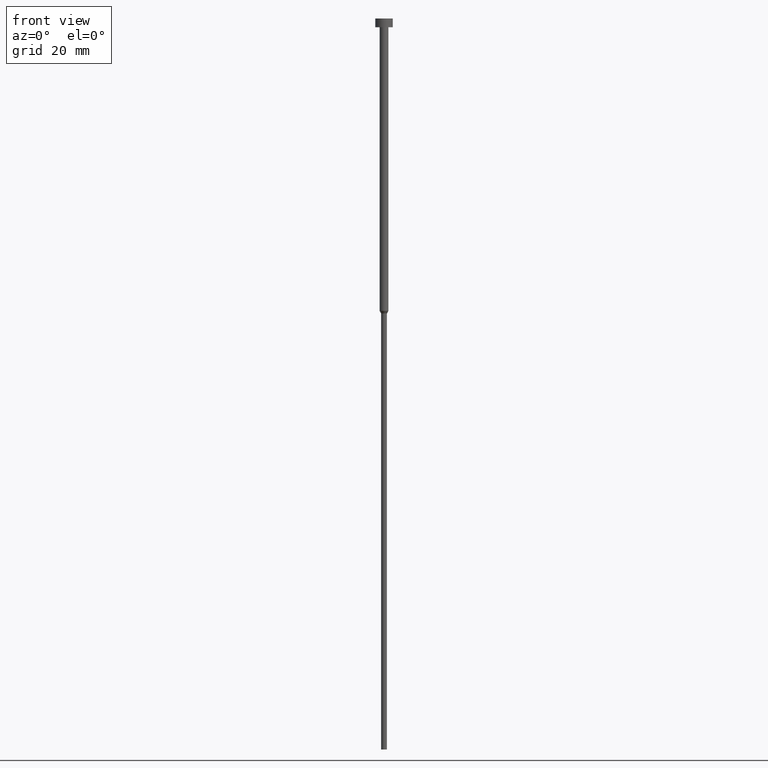
[diagram: clean part render]
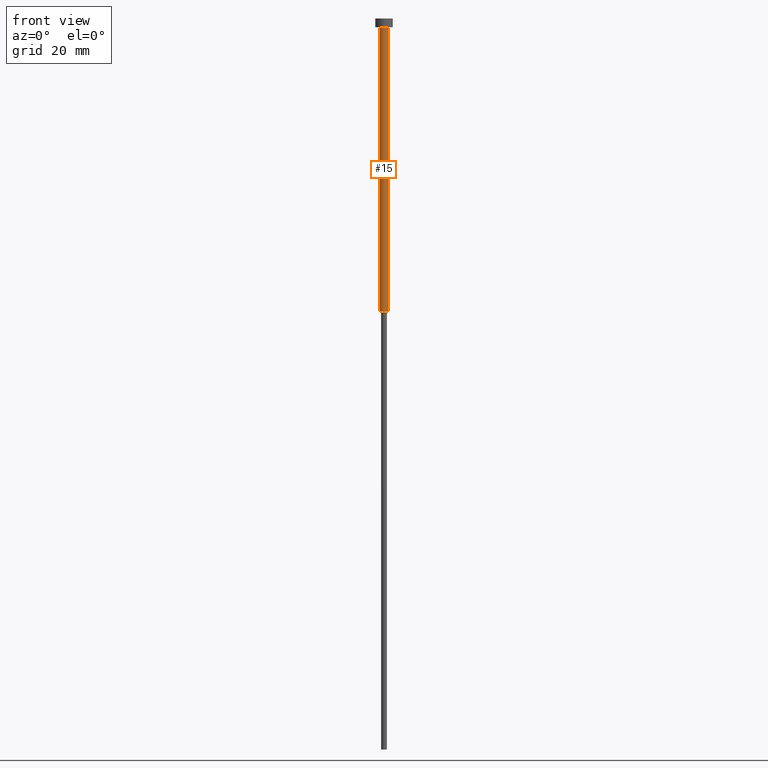
[diagram: same view with one face highlighted and labeled with its STEP entity id]
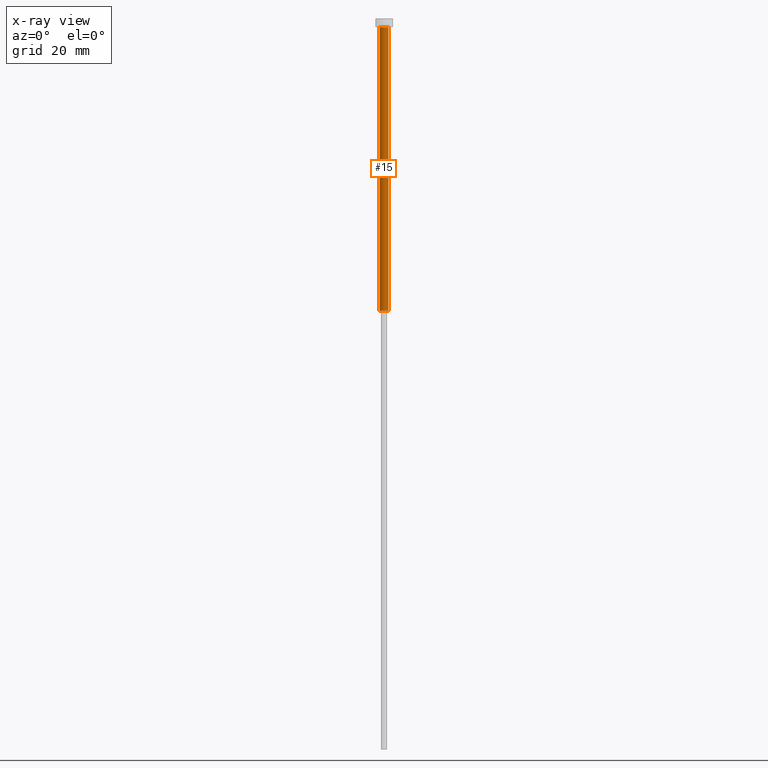
[diagram: x-ray of the same camera — body ghosted, the highlighted face saturated]
A machine part, front view. The second image highlights one B-rep face of the part: STEP entity #15.
The next image is the same camera in x-ray: the body ghosted, the highlighted face saturated — about 0% of this face is hidden behind the body in this view.
In plain terms, the highlighted cylindrical surface (edge-blend (fillet) strip) has radius 1.5 mm, axis along (-0, -0, 1).
Its self-contained STEP definition (entity closure, byte-faithful):
#3 = DIRECTION ( 'NONE',  ( 1.000000000000000000, 0.000000000000000000, 0.000000000000000000 ) ) ;
#10 = CARTESIAN_POINT ( 'NONE',  ( -1.500000000000000000, 1.836970198721029934E-16, -100.0000000000000000 ) ) ;
#12 = CARTESIAN_POINT ( 'NONE',  ( 0.000000000000000000, 0.000000000000000000, -3.000000000000000888 ) ) ;
#15 = ADVANCED_FACE ( 'NONE', ( #345 ), #25, .T. ) ;
#25 = CYLINDRICAL_SURFACE ( 'NONE', #47, 1.500000000000000000 ) ;
#27 = ORIENTED_EDGE ( 'NONE', *, *, #151, .F. ) ;
#40 = CIRCLE ( 'NONE', #235, 1.500000000000000000 ) ;
#47 = AXIS2_PLACEMENT_3D ( 'NONE', #148, #249, #3 ) ;
#51 = EDGE_CURVE ( 'NONE', #291, #209, #340, .T. ) ;
#63 = DIRECTION ( 'NONE',  ( -0.000000000000000000, -0.000000000000000000, 1.000000000000000000 ) ) ;
#66 = VERTEX_POINT ( 'NONE', #10 ) ;
#84 = EDGE_CURVE ( 'NONE', #66, #128, #123, .T. ) ;
#92 = CARTESIAN_POINT ( 'NONE',  ( -1.500000000000000000, 1.836970198721029934E-16, 0.000000000000000000 ) ) ;
#121 = DIRECTION ( 'NONE',  ( 1.000000000000000000, 0.000000000000000000, 0.000000000000000000 ) ) ;
#123 = LINE ( 'NONE', #92, #287 ) ;
#128 = VERTEX_POINT ( 'NONE', #305 ) ;
#148 = CARTESIAN_POINT ( 'NONE',  ( 0.000000000000000000, 0.000000000000000000, 0.000000000000000000 ) ) ;
#151 = EDGE_CURVE ( 'NONE', #128, #209, #40, .T. ) ;
#154 = CARTESIAN_POINT ( 'NONE',  ( 1.500000000000000000, 0.000000000000000000, -100.0000000000000000 ) ) ;
#165 = CARTESIAN_POINT ( 'NONE',  ( 1.500000000000000000, 0.000000000000000000, 0.000000000000000000 ) ) ;
#200 = DIRECTION ( 'NONE',  ( -0.000000000000000000, -0.000000000000000000, 1.000000000000000000 ) ) ;
#203 = ORIENTED_EDGE ( 'NONE', *, *, #261, .T. ) ;
#209 = VERTEX_POINT ( 'NONE', #286 ) ;
#210 = CARTESIAN_POINT ( 'NONE',  ( 0.000000000000000000, 0.000000000000000000, -100.0000000000000000 ) ) ;
#222 = DIRECTION ( 'NONE',  ( -0.000000000000000000, -0.000000000000000000, 1.000000000000000000 ) ) ;
#235 = AXIS2_PLACEMENT_3D ( 'NONE', #12, #63, #121 ) ;
#249 = DIRECTION ( 'NONE',  ( -0.000000000000000000, -0.000000000000000000, 1.000000000000000000 ) ) ;
#261 = EDGE_CURVE ( 'NONE', #66, #291, #344, .T. ) ;
#273 = AXIS2_PLACEMENT_3D ( 'NONE', #210, #300, #346 ) ;
#286 = CARTESIAN_POINT ( 'NONE',  ( 1.500000000000000000, 0.000000000000000000, -3.000000000000000888 ) ) ;
#287 = VECTOR ( 'NONE', #222, 1000.000000000000000 ) ;
#291 = VERTEX_POINT ( 'NONE', #154 ) ;
#300 = DIRECTION ( 'NONE',  ( -0.000000000000000000, -0.000000000000000000, 1.000000000000000000 ) ) ;
#305 = CARTESIAN_POINT ( 'NONE',  ( -1.500000000000000000, 1.836970198721029934E-16, -3.000000000000000888 ) ) ;
#320 = ORIENTED_EDGE ( 'NONE', *, *, #84, .F. ) ;
#322 = ORIENTED_EDGE ( 'NONE', *, *, #51, .T. ) ;
#327 = EDGE_LOOP ( 'NONE', ( #320, #203, #322, #27 ) ) ;
#340 = LINE ( 'NONE', #165, #343 ) ;
#343 = VECTOR ( 'NONE', #200, 1000.000000000000000 ) ;
#344 = CIRCLE ( 'NONE', #273, 1.500000000000000000 ) ;
#345 = FACE_OUTER_BOUND ( 'NONE', #327, .T. ) ;
#346 = DIRECTION ( 'NONE',  ( 1.000000000000000000, 0.000000000000000000, 0.000000000000000000 ) ) ;